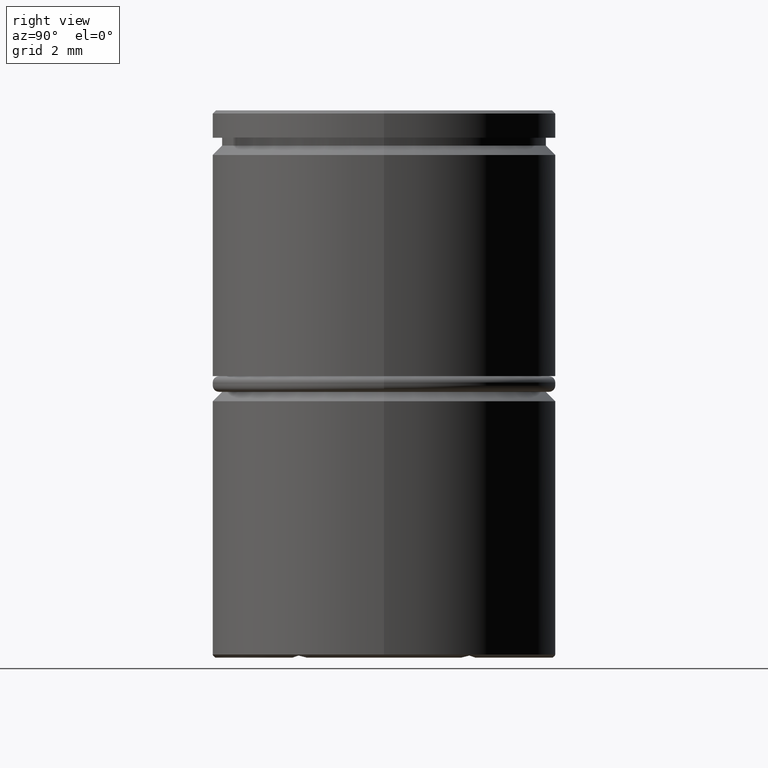
[diagram: clean part render]
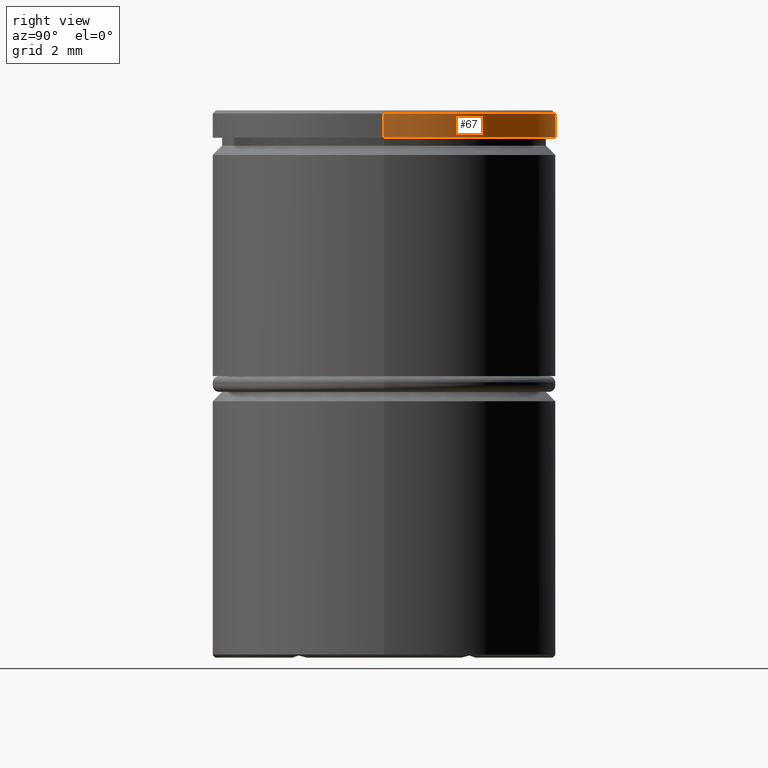
[diagram: same view with one face highlighted and labeled with its STEP entity id]
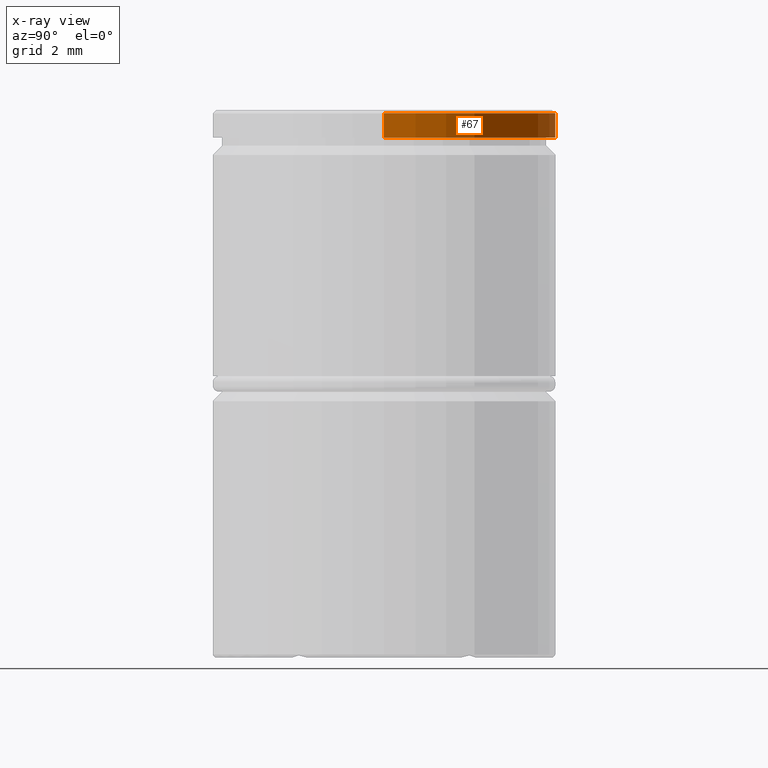
[diagram: x-ray of the same camera — body ghosted, the highlighted face saturated]
A machine part, right view. The second image highlights one B-rep face of the part: STEP entity #67.
The next image is the same camera in x-ray: the body ghosted, the highlighted face saturated — about 0% of this face is hidden behind the body in this view.
In plain terms, the highlighted cylindrical surface (partial cylindrical patch) has radius 5.5 mm, axis along (-0, -0, 1).
Its self-contained STEP definition (entity closure, byte-faithful):
#65 = EDGE_LOOP ( 'NONE', ( #1109, #650, #97, #132 ) ) ;
#67 = ADVANCED_FACE ( 'NONE', ( #1217 ), #1136, .T. ) ;
#97 = ORIENTED_EDGE ( 'NONE', *, *, #562, .T. ) ;
#108 = VERTEX_POINT ( 'NONE', #164 ) ;
#109 = CARTESIAN_POINT ( 'NONE',  ( -5.500000000000000000, 6.735557395310442023E-16, -0.8749999999999998890 ) ) ;
#123 = AXIS2_PLACEMENT_3D ( 'NONE', #825, #841, #735 ) ;
#132 = ORIENTED_EDGE ( 'NONE', *, *, #518, .F. ) ;
#146 = EDGE_CURVE ( 'NONE', #867, #965, #662, .T. ) ;
#164 = CARTESIAN_POINT ( 'NONE',  ( -5.500000000000000000, 6.735557395310442023E-16, -0.09999999999999592548 ) ) ;
#219 = CARTESIAN_POINT ( 'NONE',  ( 5.500000000000000000, 0.000000000000000000, -0.09999999999999592548 ) ) ;
#233 = VECTOR ( 'NONE', #911, 1000.000000000000000 ) ;
#257 = CARTESIAN_POINT ( 'NONE',  ( 5.500000000000000000, 0.000000000000000000, 0.000000000000000000 ) ) ;
#259 = DIRECTION ( 'NONE',  ( -0.000000000000000000, -0.000000000000000000, 1.000000000000000000 ) ) ;
#275 = AXIS2_PLACEMENT_3D ( 'NONE', #472, #901, #1331 ) ;
#467 = CARTESIAN_POINT ( 'NONE',  ( 0.000000000000000000, 0.000000000000000000, 0.000000000000000000 ) ) ;
#472 = CARTESIAN_POINT ( 'NONE',  ( 0.000000000000000000, 0.000000000000000000, -0.8749999999999998890 ) ) ;
#478 = LINE ( 'NONE', #257, #233 ) ;
#518 = EDGE_CURVE ( 'NONE', #867, #1123, #478, .T. ) ;
#562 = EDGE_CURVE ( 'NONE', #108, #1123, #923, .T. ) ;
#646 = DIRECTION ( 'NONE',  ( -0.000000000000000000, -0.000000000000000000, 1.000000000000000000 ) ) ;
#650 = ORIENTED_EDGE ( 'NONE', *, *, #1096, .T. ) ;
#662 = CIRCLE ( 'NONE', #275, 5.500000000000000000 ) ;
#721 = VECTOR ( 'NONE', #646, 1000.000000000000000 ) ;
#735 = DIRECTION ( 'NONE',  ( 1.000000000000000000, 0.000000000000000000, 0.000000000000000000 ) ) ;
#825 = CARTESIAN_POINT ( 'NONE',  ( 0.000000000000000000, 0.000000000000000000, -0.09999999999999592548 ) ) ;
#841 = DIRECTION ( 'NONE',  ( 0.000000000000000000, 0.000000000000000000, -1.000000000000000000 ) ) ;
#867 = VERTEX_POINT ( 'NONE', #1234 ) ;
#876 = CARTESIAN_POINT ( 'NONE',  ( -5.500000000000000000, 6.735557395310442023E-16, 0.000000000000000000 ) ) ;
#901 = DIRECTION ( 'NONE',  ( -0.000000000000000000, -0.000000000000000000, 1.000000000000000000 ) ) ;
#911 = DIRECTION ( 'NONE',  ( -0.000000000000000000, -0.000000000000000000, 1.000000000000000000 ) ) ;
#923 = CIRCLE ( 'NONE', #123, 5.500000000000000000 ) ;
#965 = VERTEX_POINT ( 'NONE', #109 ) ;
#984 = LINE ( 'NONE', #876, #721 ) ;
#1096 = EDGE_CURVE ( 'NONE', #965, #108, #984, .T. ) ;
#1109 = ORIENTED_EDGE ( 'NONE', *, *, #146, .T. ) ;
#1123 = VERTEX_POINT ( 'NONE', #219 ) ;
#1136 = CYLINDRICAL_SURFACE ( 'NONE', #1307, 5.500000000000000000 ) ;
#1217 = FACE_OUTER_BOUND ( 'NONE', #65, .T. ) ;
#1234 = CARTESIAN_POINT ( 'NONE',  ( 5.500000000000000000, 0.000000000000000000, -0.8749999999999998890 ) ) ;
#1243 = DIRECTION ( 'NONE',  ( 1.000000000000000000, 0.000000000000000000, 0.000000000000000000 ) ) ;
#1307 = AXIS2_PLACEMENT_3D ( 'NONE', #467, #259, #1243 ) ;
#1331 = DIRECTION ( 'NONE',  ( 1.000000000000000000, 0.000000000000000000, 0.000000000000000000 ) ) ;